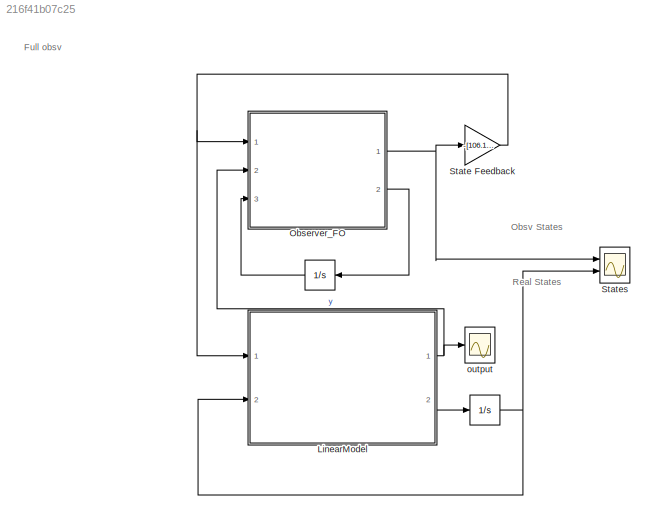
MODEL slx_216f41b07c25
KIND model
CONFIG AbsTol = auto
CONFIG EnableMultiTasking = off
CONFIG FixedStep = auto
CONFIG MaxStep = auto
CONFIG MinStep = auto
CONFIG RelTol = 1e-3
CONFIG SampleTimeConstraint = Unconstrained
CONFIG Solver = VariableStepAuto
CONFIG SolverName = VariableStepAuto
CONFIG StartTime = 0.0
CONFIG StopTime = 10.0
BLOCK [Integrator]  
  InitialCondition = [0;2;1;1;0;0]
  NameLocation = top
  Ports = [1, 1]
BLOCK [Integrator]   
  InitialCondition = [0;0;0;0;0;0]
  NameLocation = top
  Ports = [1, 1]
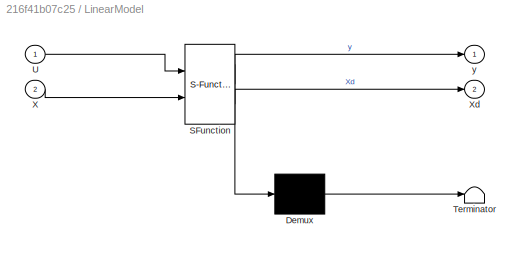
BLOCK [SubSystem] LinearModel
  ErrorFcn = Stateflow.Translate.translate
  PermitHierarchicalResolution = ExplicitOnly
  Ports = [2, 2]
  RequestExecContextInheritance = off
  SFBlockType = MATLAB Function
  TreatAsAtomicUnit = on
BLOCK [Demux] LinearModel/ Demux 
  Outputs = 1
  Ports = [1, 1]
BLOCK [S-Function] LinearModel/ SFunction 
  EnableBusSupport = on
  FunctionName = sf_sfun
  PortCounts = [2 3]
  Ports = [2, 3]
  SFcnIsStateOwnerBlock = off
  SFunctionDeploymentMode = off
  Tag = Stateflow S-Function 3
BLOCK [Terminator] LinearModel/ Terminator 
BLOCK [Inport] LinearModel/U
BLOCK [Inport] LinearModel/X
  Port = 2
BLOCK [Outport] LinearModel/Xd
  Port = 2
BLOCK [Outport] LinearModel/y
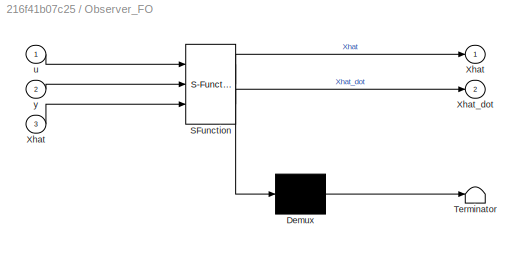
BLOCK [SubSystem] Observer_FO
  ErrorFcn = Stateflow.Translate.translate
  PermitHierarchicalResolution = ExplicitOnly
  Ports = [3, 2]
  RequestExecContextInheritance = off
  SFBlockType = MATLAB Function
  TreatAsAtomicUnit = on
BLOCK [Demux] Observer_FO/ Demux 
  Outputs = 1
  Ports = [1, 1]
BLOCK [S-Function] Observer_FO/ SFunction 
  EnableBusSupport = on
  FunctionName = sf_sfun
  PortCounts = [3 3]
  Ports = [3, 3]
  SFcnIsStateOwnerBlock = off
  SFunctionDeploymentMode = off
  Tag = Stateflow S-Function 1
BLOCK [Terminator] Observer_FO/ Terminator 
BLOCK [Outport] Observer_FO/Xhat
BLOCK [Inport] Observer_FO/Xhat 
  Port = 3
BLOCK [Outport] Observer_FO/Xhat_dot
  Port = 2
BLOCK [Inport] Observer_FO/u
BLOCK [Inport] Observer_FO/y
  Port = 2
BLOCK [Gain] State Feedback
  Gain = -[106.15 -61.299 0.111 0.986 160.72 57.96; 169.55 189.92 1.35 0.106 -43.79 -62.97]
  Multiplication = Matrix(K*u)
BLOCK [Scope] States
  Floating = off
  NumInputPorts = 2
  Ports = [2]
  ScopeSpecificationString = Simulink.scopes.TimeScopeBlockCfg('CurrentConfiguration', extmgr.ConfigurationSet(extmgr.Configuration('Core','General UI',true,'FigureColor',[1 1 1]),extmgr.Configuration('Core','Source UI',true),extmgr.Configuration('Sources','WiredSimulink',true,'DataLoggingVariableName','ScopeData3','DataLoggingSaveFormat','StructureWithTime','DataLoggingDecimation','1','DataLoggingDecimateData',true),extmgr.C...<+4148ch>
BLOCK [Scope] output 
  Floating = off
  NumInputPorts = 1
  Ports = [1]
  ScopeSpecificationString = Simulink.scopes.TimeScopeBlockCfg('CurrentConfiguration', extmgr.ConfigurationSet(extmgr.Configuration('Core','General UI',true,'FigureColor',[1 1 1]),extmgr.Configuration('Core','Source UI',true),extmgr.Configuration('Sources','WiredSimulink',true,'DataLoggingSaveFormat','StructureWithTime','DataLoggingDecimation','1','DataLoggingDecimateData',true),extmgr.Configuration('Visuals','Time Domain',tr...<+3155ch>
ANNOTATION (root): Full obsv
ANNOTATION (root): Obsv States
ANNOTATION (root): Real States
LINE   :1 -> Observer_FO:3
NET  :1 -> LinearModel:2, States:2
NET LinearModel:1 -> Observer_FO:2, output :1
LINE LinearModel:2 ->  :1
NET Observer_FO:1 -> State Feedback:1, States:1
LINE Observer_FO:2 ->   :1
NET State Feedback:1 -> LinearModel:1, Observer_FO:1
note: NET lines group one-source signal fan-out (src -> all destinations, sorted); 1:1 wires keep LINE
CHART Observer_FO states=1 transitions=1
  STATE_LABEL 'eML_blk_kernel()'
  STATE_LABEL 'SCRIPT:\nfunction [Xhat, Xhat_dot]= observer_FO(u, y, Xhat)\n\nA = [ -0.0189,  0.029,      0, 0.00306,       0,       0;\n       0, -0.029, 0.0065,       0,       0,       0;\n       0,      0, -0.476,       0,       0,       0;\n       0,      0,      0,    -0.5,       0,       0;\n       0,      0, 0.0035,       0, -0.0191,  0.0349;\n       0,      0,      0, 0.00714,       0, -0.0349];\n\nB =[0,     0;\n ...<+287ch>'
CHART LinearModel states=1 transitions=1
  STATE_LABEL 'eML_blk_kernel()'
  STATE_LABEL 'SCRIPT:\nfunction [y, Xd]  = linear_plant(U, X)\n\nA = [ -0.0189,  0.029,      0, 0.00306,       0,       0;\n       0, -0.029, 0.0065,       0,       0,       0;\n       0,      0, -0.476,       0,       0,       0;\n       0,      0,      0,    -0.5,       0,       0;\n       0,      0, 0.0035,       0, -0.0191,  0.0349;\n       0,      0,      0, 0.00714,       0, -0.0349];\n\nB =[0,     0;\n   0,     0;\n...<+136ch>'
CHART  states=0 transitions=0
CHART  states=0 transitions=0
